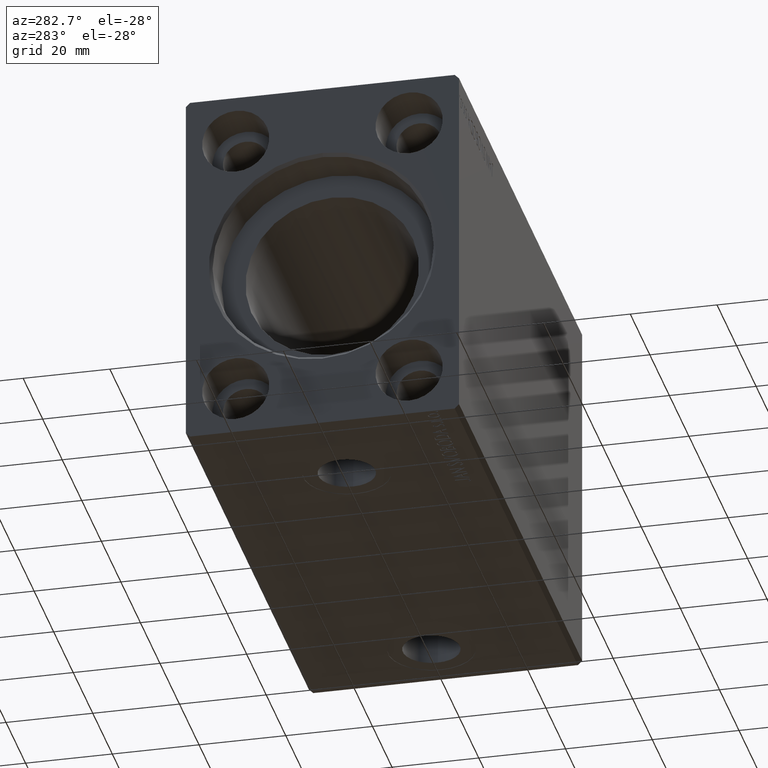
[diagram: clean part render]
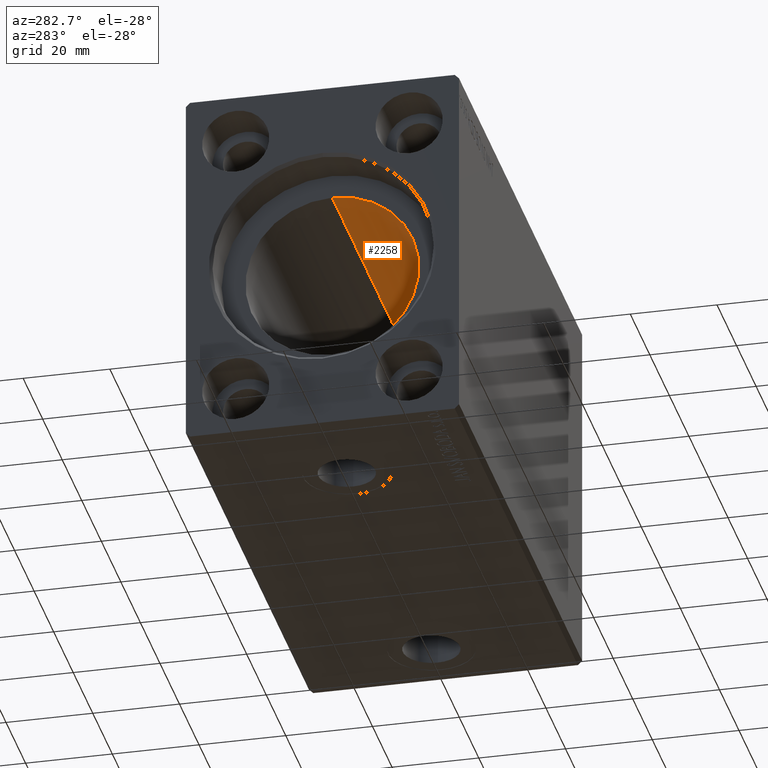
[diagram: same view with one face highlighted and labeled with its STEP entity id]
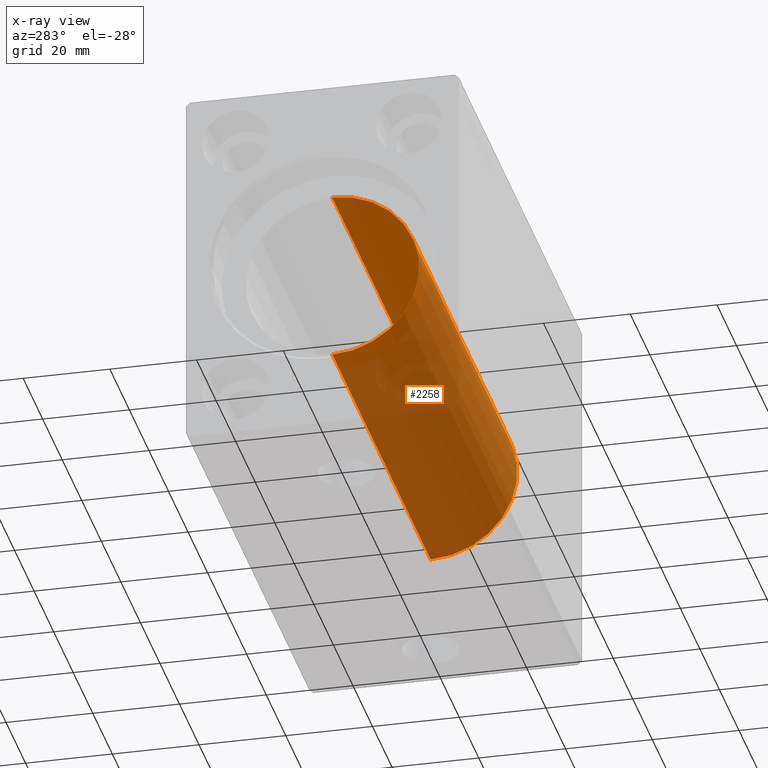
[diagram: x-ray of the same camera — body ghosted, the highlighted face saturated]
A machine part, auxiliary view. The second image highlights one B-rep face of the part: STEP entity #2258.
The next image is the same camera in x-ray: the body ghosted, the highlighted face saturated — about 77% of this face is hidden behind the body in this view.
In plain terms, the highlighted cylindrical surface (partial cylindrical patch) has radius 20 mm, axis along (-1, -0, -0).
Its self-contained STEP definition (entity closure, byte-faithful):
#493 = CARTESIAN_POINT ( 'NONE',  ( 9.999999999999994671, 0.000000000000000000, 20.00000000000000000 ) ) ;
#576 = LINE ( 'NONE', #29580, #39922 ) ;
#1718 = AXIS2_PLACEMENT_3D ( 'NONE', #35456, #28365, #8831 ) ;
#1858 = VERTEX_POINT ( 'NONE', #493 ) ;
#2258 = ADVANCED_FACE ( 'NONE', ( #23913 ), #27559, .F. ) ;
#4016 = DIRECTION ( 'NONE',  ( -1.000000000000000000, -0.000000000000000000, -0.000000000000000000 ) ) ;
#5230 = CARTESIAN_POINT ( 'NONE',  ( 9.999999999999994671, 2.449293598294706513E-15, -20.00000000000000000 ) ) ;
#5436 = VERTEX_POINT ( 'NONE', #10928 ) ;
#5757 = EDGE_CURVE ( 'NONE', #5436, #1858, #576, .T. ) ;
#7177 = DIRECTION ( 'NONE',  ( 0.000000000000000000, 0.000000000000000000, 1.000000000000000000 ) ) ;
#7361 = AXIS2_PLACEMENT_3D ( 'NONE', #23487, #36579, #7177 ) ;
#7496 = EDGE_CURVE ( 'NONE', #30169, #1858, #29690, .T. ) ;
#8831 = DIRECTION ( 'NONE',  ( 0.000000000000000000, 0.000000000000000000, 1.000000000000000000 ) ) ;
#9840 = CARTESIAN_POINT ( 'NONE',  ( 110.7000000000000028, 2.449293598294706513E-15, -20.00000000000000000 ) ) ;
#10928 = CARTESIAN_POINT ( 'NONE',  ( 110.7000000000000028, 0.000000000000000000, 20.00000000000000000 ) ) ;
#13479 = EDGE_CURVE ( 'NONE', #37700, #30169, #33650, .T. ) ;
#14831 = EDGE_CURVE ( 'NONE', #37700, #5436, #15437, .T. ) ;
#14898 = CARTESIAN_POINT ( 'NONE',  ( 9.999999999999994671, 0.000000000000000000, 0.000000000000000000 ) ) ;
#15437 = CIRCLE ( 'NONE', #1718, 20.00000000000000000 ) ;
#17448 = CARTESIAN_POINT ( 'NONE',  ( 110.7000000000000028, 2.449293598294706513E-15, -20.00000000000000000 ) ) ;
#17654 = ORIENTED_EDGE ( 'NONE', *, *, #5757, .F. ) ;
#21699 = EDGE_LOOP ( 'NONE', ( #30701, #32871, #34923, #17654 ) ) ;
#23487 = CARTESIAN_POINT ( 'NONE',  ( 110.7000000000000028, 0.000000000000000000, 0.000000000000000000 ) ) ;
#23913 = FACE_OUTER_BOUND ( 'NONE', #21699, .T. ) ;
#24880 = AXIS2_PLACEMENT_3D ( 'NONE', #14898, #27163, #27798 ) ;
#26151 = DIRECTION ( 'NONE',  ( -1.000000000000000000, -0.000000000000000000, -0.000000000000000000 ) ) ;
#27163 = DIRECTION ( 'NONE',  ( -1.000000000000000000, 0.000000000000000000, 0.000000000000000000 ) ) ;
#27559 = CYLINDRICAL_SURFACE ( 'NONE', #7361, 20.00000000000000000 ) ;
#27798 = DIRECTION ( 'NONE',  ( 0.000000000000000000, 0.000000000000000000, 1.000000000000000000 ) ) ;
#28365 = DIRECTION ( 'NONE',  ( -1.000000000000000000, 0.000000000000000000, 0.000000000000000000 ) ) ;
#29580 = CARTESIAN_POINT ( 'NONE',  ( 110.7000000000000028, 0.000000000000000000, 20.00000000000000000 ) ) ;
#29690 = CIRCLE ( 'NONE', #24880, 20.00000000000000000 ) ;
#30169 = VERTEX_POINT ( 'NONE', #5230 ) ;
#30701 = ORIENTED_EDGE ( 'NONE', *, *, #14831, .F. ) ;
#32871 = ORIENTED_EDGE ( 'NONE', *, *, #13479, .T. ) ;
#33650 = LINE ( 'NONE', #9840, #42164 ) ;
#34923 = ORIENTED_EDGE ( 'NONE', *, *, #7496, .T. ) ;
#35456 = CARTESIAN_POINT ( 'NONE',  ( 110.7000000000000028, 0.000000000000000000, 0.000000000000000000 ) ) ;
#36579 = DIRECTION ( 'NONE',  ( -1.000000000000000000, -0.000000000000000000, -0.000000000000000000 ) ) ;
#37700 = VERTEX_POINT ( 'NONE', #17448 ) ;
#39922 = VECTOR ( 'NONE', #4016, 1000.000000000000000 ) ;
#42164 = VECTOR ( 'NONE', #26151, 1000.000000000000000 ) ;